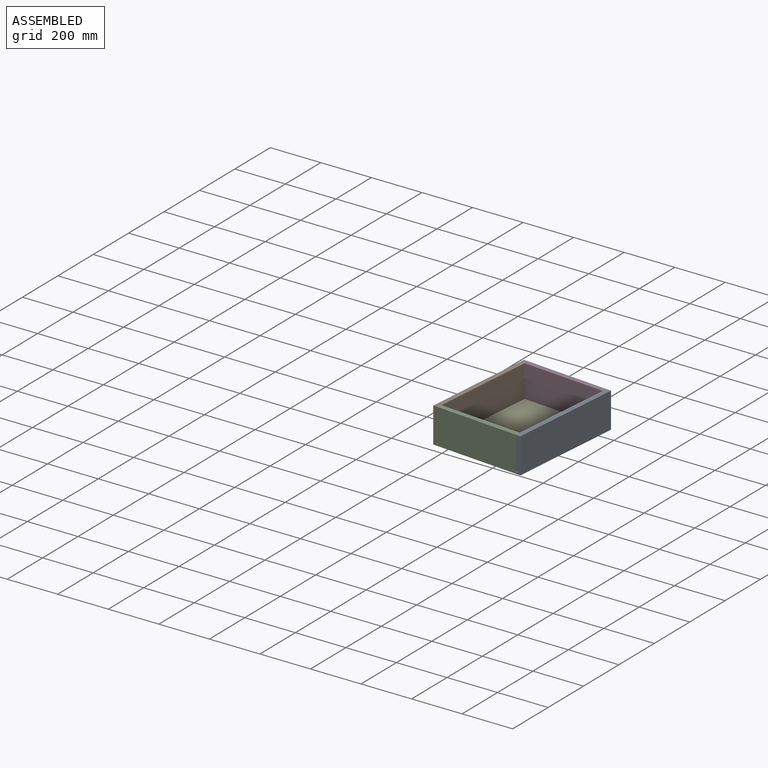
[diagram: assembled view]
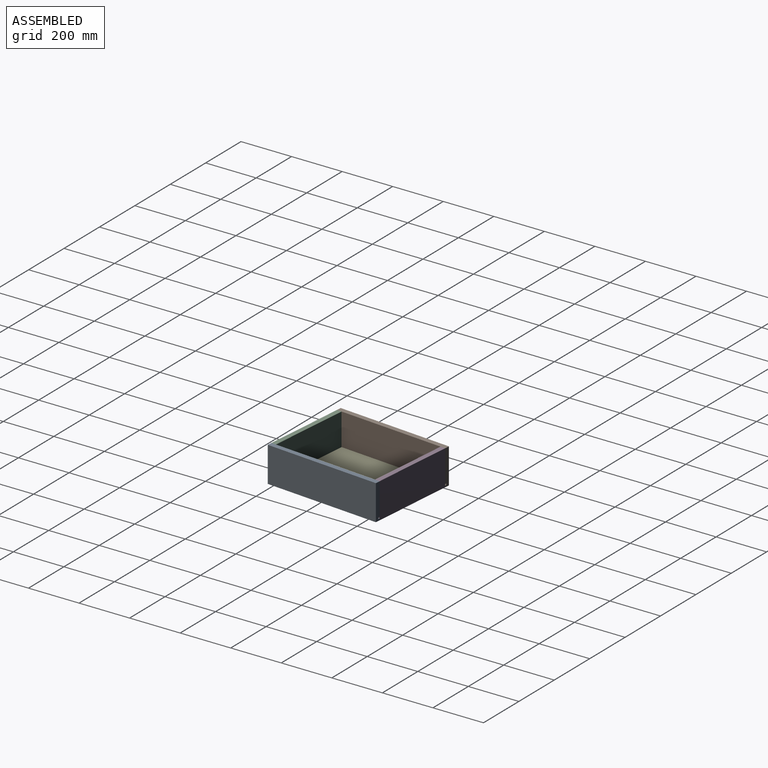
[diagram: assembled view, second angle]
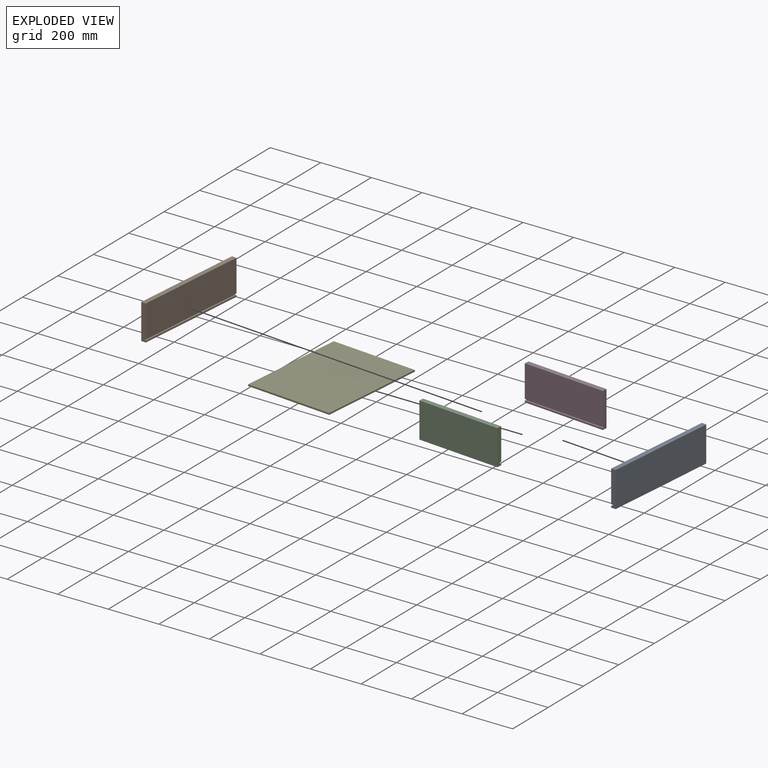
[diagram: exploded view]
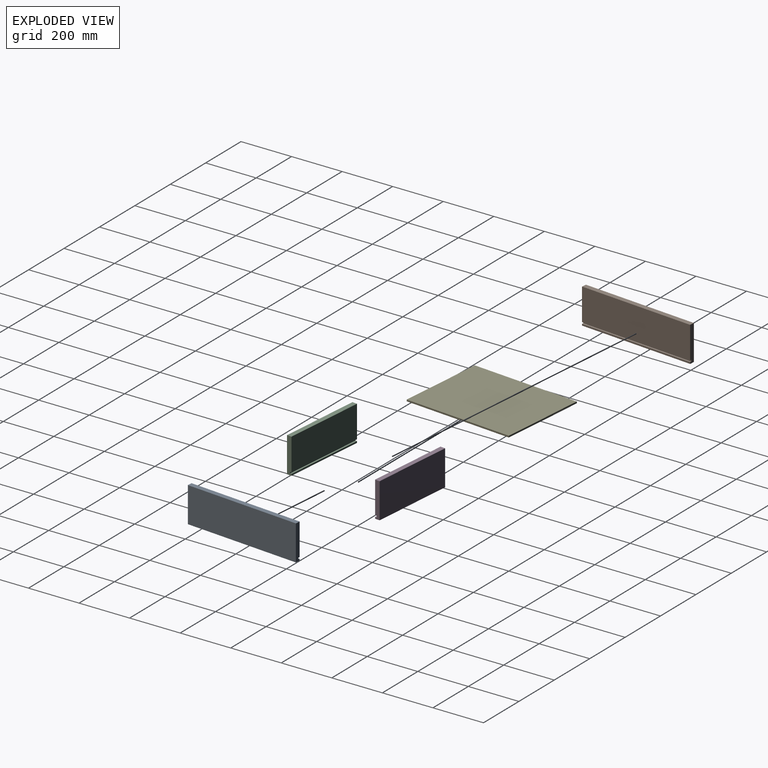
[diagram: exploded view, second angle]
ASSEMBLY  parts=5 mates=12
PART A: 10 faces, bbox 139.7x19.1x457.2 mm
  f0: plane 457.2x127mm, normal (0,-1,0), area 58064.4mm2, adj f3,f5,f6,f9
  f1: plane 457.2x19.05mm, normal (1,0,0), area 8709.7mm2, adj f2,f4,f5,f6
  f2: plane 457.2x139.7mm, normal (0,1,0), area 63870.8mm2, adj f1,f3,f5,f6
  f3: plane 457.2x19.05mm, normal (-1,0,0), area 8709.7mm2, adj f0,f2,f5,f6
  f4: plane 457.2x6.35mm, normal (0,-1,0), area 2903.2mm2, adj f1,f5,f6,f7
  f5: plane 139.7x19.05mm, normal (0,0,1), area 2621mm2, adj f0,f1,f2,f3,f4,f7,f8,f9
  f6: plane 139.7x19.05mm, normal (0,0,-1), area 2621mm2, adj f0,f1,f2,f3,f4,f7,f8,f9
  f7: plane 457.2x6.35mm, normal (-1,0,0), area 2903.2mm2, adj f4,f5,f6,f8
  f8: plane 457.2x6.35mm, normal (0,-1,0), area 2903.2mm2, adj f5,f6,f7,f9
  f9: plane 457.2x6.35mm, normal (1,0,0), area 2903.2mm2, adj f0,f5,f6,f8
PART B: same geometry as A
PART C: 10 faces, bbox 19.1x330.2x139.7 mm
  f0: plane 330.2x6.35mm, normal (1,0,0), area 2096.8mm2, adj f4,f5,f6,f9
  f1: plane 330.2x127mm, normal (1,0,0), area 41935.4mm2, adj f2,f5,f6,f7
  f2: plane 330.2x19.05mm, normal (0,0,1), area 6290.3mm2, adj f1,f3,f5,f6
  f3: plane 330.2x139.7mm, normal (-1,0,0), area 46128.9mm2, adj f2,f4,f5,f6
  f4: plane 330.2x19.05mm, normal (0,0,-1), area 6290.3mm2, adj f0,f3,f5,f6
  f5: plane 139.7x19.05mm, normal (0,-1,0), area 2621mm2, adj f0,f1,f2,f3,f4,f7,f8,f9
  f6: plane 139.7x19.05mm, normal (0,1,0), area 2621mm2, adj f0,f1,f2,f3,f4,f7,f8,f9
  f7: plane 330.2x6.35mm, normal (0,0,-1), area 2096.8mm2, adj f1,f5,f6,f8
  f8: plane 330.2x6.35mm, normal (1,0,0), area 2096.8mm2, adj f5,f6,f7,f9
  f9: plane 330.2x6.35mm, normal (0,0,1), area 2096.8mm2, adj f0,f5,f6,f8
PART D: same geometry as C
PART E: 6 faces, bbox 431.8x342.9x6.4 mm
  f0: plane 342.9x6.35mm, normal (-1,0,0), area 2177.4mm2, adj f1,f3,f4,f5
  f1: plane 431.8x6.35mm, normal (0,-1,0), area 2741.9mm2, adj f0,f2,f4,f5
  f2: plane 342.9x6.35mm, normal (1,0,0), area 2177.4mm2, adj f1,f3,f4,f5
  f3: plane 431.8x6.35mm, normal (0,1,0), area 2741.9mm2, adj f0,f2,f4,f5
  f4: plane 431.8x342.9mm, normal (0,0,1), area 148064.2mm2, adj f0,f1,f2,f3
  f5: plane 431.8x342.9mm, normal (0,0,-1), area 148064.2mm2, adj f0,f1,f2,f3
PLACE A rot(axis=(0.59,0.54,-0.59),122.9deg) t=(-251.84,-754.83,-6.42)mm
PLACE B rot(axis=(-0.56,0.61,0.56),117.2deg) t=(-639.61,-1179.85,-6.42)mm
PLACE C rot(axis=(0,0,1),85deg) t=(-629.29,-1171.2,-6.42)mm
PLACE D rot(axis=(0,0,-1),95deg) t=(-262.16,-763.49,-6.42)mm
PLACE E rot(axis=(0,0,1),85deg) t=(-293.74,-1197.37,-69.92)mm
MATE planar A.f6 <-> D.f3  axis (0.09,1,0) through (-251.74,-754.84,-5.49)mm
MATE planar B.f1 <-> D.f4  axis (0,0,-1) through (-590.27,-725.22,-76.27)mm
MATE planar B.f8 <-> E.f3  axis (1,-0.09,0) through (-616.52,-952.4,-66.74)mm
MATE planar C.f5 <-> A.f0  axis (1,-0.09,0) through (-300.35,-1200.07,-5.49)mm
MATE planar B.f0 <-> D.f5  axis (1,-0.09,0) through (-610.19,-952.95,-0.07)mm
MATE planar A.f1 <-> D.f4  axis (0,0,-1) through (-271.76,-982.56,-76.27)mm
MATE planar A.f1 <-> C.f4  axis (0,0,-1) through (-271.76,-982.56,-76.27)mm
MATE planar E.f0 <-> C.f8  axis (-0.09,-1,0) through (-464.54,-1182.42,-66.74)mm
MATE planar B.f7 <-> E.f5  axis (0,0,1) through (-613.36,-952.68,-69.92)mm
MATE planar D.f3 <-> B.f5  axis (0.09,1,0) through (-425.8,-739.61,-6.42)mm
MATE planar C.f3 <-> A.f5  axis (-0.09,-1,0) through (-465.65,-1195.07,-6.42)mm
MATE planar D.f6 <-> A.f0  axis (1,-0.09,0) through (-262.15,-763.39,-5.49)mm
